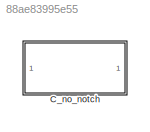
MODEL slx_88ae83995e55
KIND model
CONFIG AbsTol = auto
CONFIG EnableMultiTasking = off
CONFIG FixedStep = auto
CONFIG MaxStep = auto
CONFIG MinStep = auto
CONFIG RelTol = 1e-3
CONFIG SampleTimeConstraint = Unconstrained
CONFIG SolverName = VariableStepAuto
CONFIG StartTime = 0.0
CONFIG StopTime = 10.0
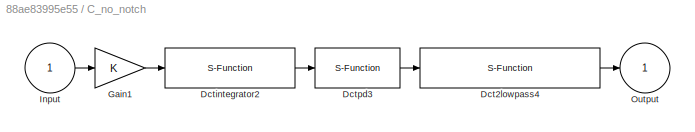
BLOCK [SubSystem] C_no_notch
BLOCK [S-Function] C_no_notch/Dct2lowpass4
  EnableBusSupport = off
  FunctionName = dlowpass2
  Parameters = f_den, b_den, 0.001
  SFcnIsStateOwnerBlock = off
  SFunctionDeploymentMode = off
BLOCK [S-Function] C_no_notch/Dctintegrator2
  EnableBusSupport = off
  FunctionName = dweakint
  Parameters = f_num, 0.001
  SFcnIsStateOwnerBlock = off
  SFunctionDeploymentMode = off
BLOCK [S-Function] C_no_notch/Dctpd3
  EnableBusSupport = off
  FunctionName = dpd
  Parameters = kp, kv, 0.001
  SFcnIsStateOwnerBlock = off
  SFunctionDeploymentMode = off
BLOCK [Gain] C_no_notch/Gain1
BLOCK [Inport] C_no_notch/Input
BLOCK [Outport] C_no_notch/Output
LINE C_no_notch/Dct2lowpass4:1 -> C_no_notch/Output:1
LINE C_no_notch/Dctintegrator2:1 -> C_no_notch/Dctpd3:1
LINE C_no_notch/Dctpd3:1 -> C_no_notch/Dct2lowpass4:1
LINE C_no_notch/Gain1:1 -> C_no_notch/Dctintegrator2:1
LINE C_no_notch/Input:1 -> C_no_notch/Gain1:1
